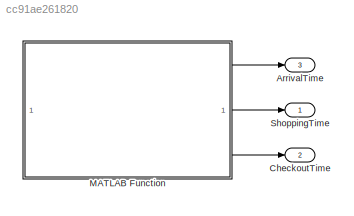
MODEL slx_cc91ae261820
KIND model
CONFIG AbsTol = auto
CONFIG EnableMultiTasking = off
CONFIG FixedStep = auto
CONFIG MaxStep = auto
CONFIG MinStep = auto
CONFIG RelTol = 1e-3
CONFIG SampleTimeConstraint = Unconstrained
CONFIG SolverName = VariableStepAuto
CONFIG StartTime = 0.0
CONFIG StopTime = 10.0
BLOCK [Outport] ArrivalTime
  Port = 3
BLOCK [Outport] CheckoutTime
  Port = 2
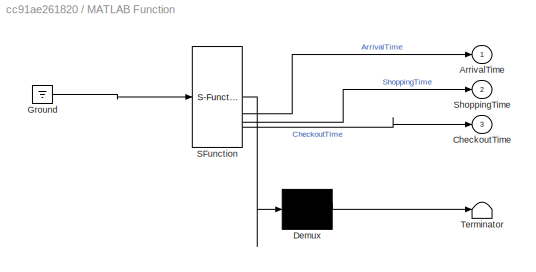
BLOCK [SubSystem] MATLAB Function
  ErrorFcn = Stateflow.Translate.translate
  PermitHierarchicalResolution = ExplicitOnly
  SFBlockType = MATLAB Function
  TreatAsAtomicUnit = on
BLOCK [Demux] MATLAB Function/ Demux 
  Outputs = 1
BLOCK [Ground] MATLAB Function/ Ground 
BLOCK [S-Function] MATLAB Function/ SFunction 
  EnableBusSupport = off
  FunctionName = sf_sfun
  PortCounts = [1 4]
  SFcnIsStateOwnerBlock = off
  SFunctionDeploymentMode = off
  Tag = Stateflow S-Function 2
BLOCK [Terminator] MATLAB Function/ Terminator 
BLOCK [Outport] MATLAB Function/ArrivalTime
BLOCK [Outport] MATLAB Function/CheckoutTime
  Port = 3
BLOCK [Outport] MATLAB Function/ShoppingTime
  Port = 2
BLOCK [Outport] ShoppingTime
LINE MATLAB Function:1 -> ArrivalTime:1
LINE MATLAB Function:2 -> ShoppingTime:1
LINE MATLAB Function:3 -> CheckoutTime:1
CHART MATLAB Function states=1 transitions=1
  STATE_LABEL 'eML_blk_kernel()'
  STATE_LABEL 'SCRIPT:\nfunction [ArrivalTime, ShoppingTime, CheckoutTime] = Customer()\n    % Function to generate input variables to match Excel\n    ArrivalTime = randi(10);     % Random arrival time between 0-10\n    ShoppingTime = randi(7);     % Random shopping time between 1-7\n    CheckoutTime = randi(4);     % Random checkout time between 1-4\nend\n'
CHART  states=0 transitions=0
